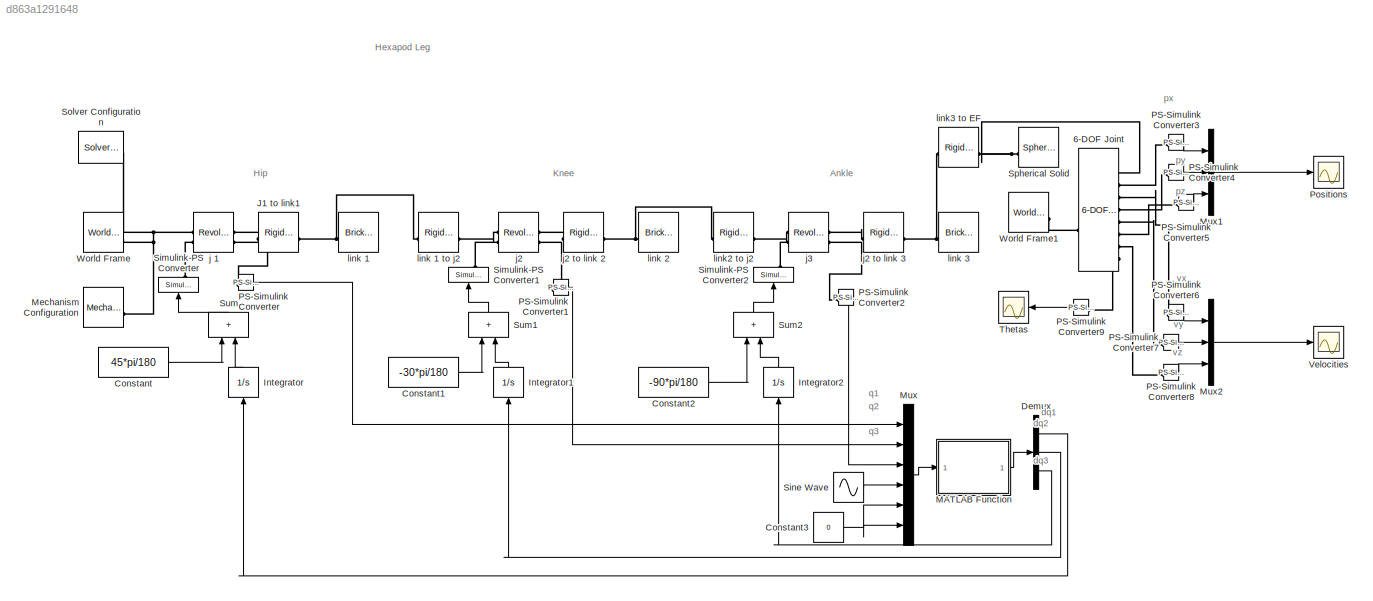
MODEL slx_d863a1291648
KIND model
CONFIG AbsTol = auto
CONFIG EnableMultiTasking = off
CONFIG FixedStep = auto
CONFIG MaxStep = auto
CONFIG MinStep = auto
CONFIG RelTol = 1e-3
CONFIG SampleTimeConstraint = Unconstrained
CONFIG SolverName = VariableStepAuto
CONFIG StartTime = 0.0
CONFIG StopTime = 10
BLOCK [Reference] 6-DOF Joint  REF=sm_lib/Joints/6-DOF Joint
  SourceBlock = sm_lib/Joints/6-DOF Joint
  SourceType = 6-DOF Joint
BLOCK [Constant] Constant
  Value = 45*pi/180
BLOCK [Constant] Constant1
  Value = -30*pi/180
BLOCK [Constant] Constant2
  Value = -90*pi/180
BLOCK [Constant] Constant3
  Value = 0
BLOCK [Demux] Demux
  Outputs = 3
BLOCK [Integrator] Integrator
  NameLocation = right
BLOCK [Integrator] Integrator1
  NameLocation = right
BLOCK [Integrator] Integrator2
  NameLocation = right
BLOCK [Reference] J1 to link1  REF=sm_lib/Frames and
Transforms/Rigid
Transform
  SourceBlock = sm_lib/Frames and\nTransforms/Rigid\nTransform
  SourceType = Rigid\nTransform
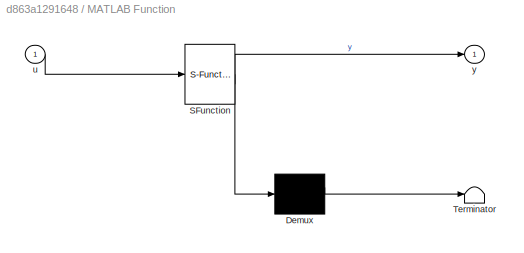
BLOCK [SubSystem] MATLAB Function
  ErrorFcn = Stateflow.Translate.translate
  LibrarySourceBlock = simulink/User-Defined\nFunctions/MATLAB Function
  PermitHierarchicalResolution = ExplicitOnly
  SFBlockType = MATLAB Function
  TreatAsAtomicUnit = on
BLOCK [Demux] MATLAB Function/ Demux 
  Outputs = 1
BLOCK [S-Function] MATLAB Function/ SFunction 
  EnableBusSupport = on
  FunctionName = sf_sfun
  PortCounts = [1 2]
  SFcnIsStateOwnerBlock = off
  SFunctionDeploymentMode = off
  Tag = Stateflow S-Function 2
BLOCK [Terminator] MATLAB Function/ Terminator 
BLOCK [Inport] MATLAB Function/u
BLOCK [Outport] MATLAB Function/y
BLOCK [Reference] Mechanism Configuration  REF=sm_lib/Utilities/Mechanism
Configuration
  SourceBlock = sm_lib/Utilities/Mechanism\nConfiguration
  SourceType = Mechanism\nConfiguration
BLOCK [Mux] Mux
  DisplayOption = bar
  Inputs = 6
BLOCK [Mux] Mux1
  DisplayOption = bar
  Inputs = 3
BLOCK [Mux] Mux2
  DisplayOption = bar
  Inputs = 3
BLOCK [Reference] PS-Simulink Converter  REF=nesl_utility/PS-Simulink
Converter
  SourceBlock = nesl_utility/PS-Simulink\nConverter
  SourceType = PS-Simulink\nConverter
BLOCK [Reference] PS-Simulink Converter1  REF=nesl_utility/PS-Simulink
Converter
  SourceBlock = nesl_utility/PS-Simulink\nConverter
  SourceType = PS-Simulink\nConverter
BLOCK [Reference] PS-Simulink Converter2  REF=nesl_utility/PS-Simulink
Converter
  SourceBlock = nesl_utility/PS-Simulink\nConverter
  SourceType = PS-Simulink\nConverter
BLOCK [Reference] PS-Simulink Converter3  REF=nesl_utility/PS-Simulink
Converter
  SourceBlock = nesl_utility/PS-Simulink\nConverter
  SourceType = PS-Simulink\nConverter
BLOCK [Reference] PS-Simulink Converter4  REF=nesl_utility/PS-Simulink
Converter
  SourceBlock = nesl_utility/PS-Simulink\nConverter
  SourceType = PS-Simulink\nConverter
BLOCK [Reference] PS-Simulink Converter5  REF=nesl_utility/PS-Simulink
Converter
  SourceBlock = nesl_utility/PS-Simulink\nConverter
  SourceType = PS-Simulink\nConverter
BLOCK [Reference] PS-Simulink Converter6  REF=nesl_utility/PS-Simulink
Converter
  SourceBlock = nesl_utility/PS-Simulink\nConverter
  SourceType = PS-Simulink\nConverter
BLOCK [Reference] PS-Simulink Converter7  REF=nesl_utility/PS-Simulink
Converter
  SourceBlock = nesl_utility/PS-Simulink\nConverter
  SourceType = PS-Simulink\nConverter
BLOCK [Reference] PS-Simulink Converter8  REF=nesl_utility/PS-Simulink
Converter
  SourceBlock = nesl_utility/PS-Simulink\nConverter
  SourceType = PS-Simulink\nConverter
BLOCK [Reference] PS-Simulink Converter9  REF=nesl_utility/PS-Simulink
Converter
  SourceBlock = nesl_utility/PS-Simulink\nConverter
  SourceType = PS-Simulink\nConverter
BLOCK [Scope] Positions
  Floating = off
  NumInputPorts = 1
  ScopeSpecificationString = Simulink.scopes.TimeScopeBlockCfg('CurrentConfiguration', extmgr.ConfigurationSet(extmgr.Configuration('Core','General UI',true),extmgr.Configuration('Core','Source UI',true),extmgr.Configuration('Sources','WiredSimulink',true,'DataLoggingVariableName','ScopeData1'),extmgr.Configuration('Visuals','Time Domain',true,'SerializedDisplays',{struct('MinYLimReal','-.17','MaxYLimReal','.17','YLabelReal',...<+1828ch>
BLOCK [Reference] Simulink-PS Converter  REF=nesl_utility/Simulink-PS
Converter
  NameLocation = right
  SourceBlock = nesl_utility/Simulink-PS\nConverter
  SourceType = Simulink-PS\nConverter
BLOCK [Reference] Simulink-PS Converter1  REF=nesl_utility/Simulink-PS
Converter
  NameLocation = right
  SourceBlock = nesl_utility/Simulink-PS\nConverter
  SourceType = Simulink-PS\nConverter
BLOCK [Reference] Simulink-PS Converter2  REF=nesl_utility/Simulink-PS
Converter
  NameLocation = right
  SourceBlock = nesl_utility/Simulink-PS\nConverter
  SourceType = Simulink-PS\nConverter
BLOCK [Sin] Sine Wave
  Amplitude = 120
  Frequency = pi
  SampleTime = 0
BLOCK [Reference] Solver Configuration  REF=nesl_utility/Solver
Configuration
  SourceBlock = nesl_utility/Solver\nConfiguration
  SourceType = Solver\nConfiguration
BLOCK [Reference] Spherical Solid  REF=sm_lib/Body Elements/Spherical Solid
  SourceBlock = sm_lib/Body Elements/Spherical Solid
  SourceType = Spherical Solid
BLOCK [Sum] Sum
  IconShape = rectangular
  Inputs = |++
  NameLocation = right
BLOCK [Sum] Sum1
  IconShape = rectangular
  Inputs = |++
  NameLocation = right
BLOCK [Sum] Sum2
  IconShape = rectangular
  Inputs = |++
  NameLocation = right
BLOCK [Scope] Thetas
  Floating = off
  NumInputPorts = 1
  ScopeSpecificationString = Simulink.scopes.TimeScopeBlockCfg('CurrentConfiguration', extmgr.ConfigurationSet(extmgr.Configuration('Core','General UI',true),extmgr.Configuration('Core','Source UI',true),extmgr.Configuration('Sources','WiredSimulink',true),extmgr.Configuration('Visuals','Time Domain',true,'SerializedDisplays',{struct('MinYLimReal','-0.84355','MaxYLimReal','0.58136','YLabelReal','','MinYLimMag','0.00000','MaxY...<+1452ch>
BLOCK [Scope] Velocities
  Floating = off
  NumInputPorts = 1
  ScopeSpecificationString = Simulink.scopes.TimeScopeBlockCfg('CurrentConfiguration', extmgr.ConfigurationSet(extmgr.Configuration('Core','General UI',true),extmgr.Configuration('Core','Source UI',true),extmgr.Configuration('Sources','WiredSimulink',true,'DataLoggingVariableName','ScopeData2'),extmgr.Configuration('Visuals','Time Domain',true,'SerializedDisplays',{struct('MinYLimReal','-0.14999','MaxYLimReal','0.15013','YLab...<+1872ch>
BLOCK [Reference] World Frame  REF=sm_lib/Frames and
Transforms/World Frame
  SourceBlock = sm_lib/Frames and\nTransforms/World Frame
  SourceType = World Frame
BLOCK [Reference] World Frame1  REF=sm_lib/Frames and
Transforms/World Frame
  SourceBlock = sm_lib/Frames and\nTransforms/World Frame
  SourceType = World Frame
BLOCK [Reference] j 1  REF=sm_lib/Joints/Revolute Joint
  SourceBlock = sm_lib/Joints/Revolute Joint
  SourceType = Revolute Joint
BLOCK [Reference] j2  REF=sm_lib/Joints/Revolute Joint
  SourceBlock = sm_lib/Joints/Revolute Joint
  SourceType = Revolute Joint
BLOCK [Reference] j2 to link 2  REF=sm_lib/Frames and
Transforms/Rigid
Transform
  SourceBlock = sm_lib/Frames and\nTransforms/Rigid\nTransform
  SourceType = Rigid\nTransform
BLOCK [Reference] j2 to link 3  REF=sm_lib/Frames and
Transforms/Rigid
Transform
  SourceBlock = sm_lib/Frames and\nTransforms/Rigid\nTransform
  SourceType = Rigid\nTransform
BLOCK [Reference] j3  REF=sm_lib/Joints/Revolute Joint
  SourceBlock = sm_lib/Joints/Revolute Joint
  SourceType = Revolute Joint
BLOCK [Reference] link 1  REF=sm_lib/Body Elements/Brick Solid
  SourceBlock = sm_lib/Body Elements/Brick Solid
  SourceType = Brick Solid
BLOCK [Reference] link 1 to j2  REF=sm_lib/Frames and
Transforms/Rigid
Transform
  SourceBlock = sm_lib/Frames and\nTransforms/Rigid\nTransform
  SourceType = Rigid\nTransform
BLOCK [Reference] link 2  REF=sm_lib/Body Elements/Brick Solid
  SourceBlock = sm_lib/Body Elements/Brick Solid
  SourceType = Brick Solid
BLOCK [Reference] link 3  REF=sm_lib/Body Elements/Brick Solid
  SourceBlock = sm_lib/Body Elements/Brick Solid
  SourceType = Brick Solid
BLOCK [Reference] link2 to j2  REF=sm_lib/Frames and
Transforms/Rigid
Transform
  SourceBlock = sm_lib/Frames and\nTransforms/Rigid\nTransform
  SourceType = Rigid\nTransform
BLOCK [Reference] link3 to EF  REF=sm_lib/Frames and
Transforms/Rigid
Transform
  SourceBlock = sm_lib/Frames and\nTransforms/Rigid\nTransform
  SourceType = Rigid\nTransform
ANNOTATION (root): Ankle
ANNOTATION (root): Knee
ANNOTATION (root): Hip
ANNOTATION (root): Hexapod Leg
ANNOTATION (root): dq1
ANNOTATION (root): dq2
ANNOTATION (root): dq3
ANNOTATION (root): px
ANNOTATION (root): py
ANNOTATION (root): pz
ANNOTATION (root): q1
ANNOTATION (root): q2
ANNOTATION (root): q3
ANNOTATION (root): vx
ANNOTATION (root): vy
ANNOTATION (root): vz
LINE Constant1:1 -> Sum1:1
LINE Constant2:1 -> Sum2:1
NET Constant3:1 -> Mux:5, Mux:6
LINE Constant:1 -> Sum:1
LINE Demux:1 -> Integrator:1
LINE Demux:2 -> Integrator1:1
LINE Demux:3 -> Integrator2:1
LINE Integrator1:1 -> Sum1:2
LINE Integrator2:1 -> Sum2:2
LINE Integrator:1 -> Sum:2
LINE MATLAB Function:1 -> Demux:1
LINE Mux1:1 -> Positions:1
LINE Mux2:1 -> Velocities:1
LINE Mux:1 -> MATLAB Function:1
LINE PS-Simulink Converter1:1 -> Mux:2
LINE PS-Simulink Converter2:1 -> Mux:3
LINE PS-Simulink Converter3:1 -> Mux1:1
LINE PS-Simulink Converter4:1 -> Mux1:2
LINE PS-Simulink Converter5:1 -> Mux1:3
LINE PS-Simulink Converter6:1 -> Mux2:1
LINE PS-Simulink Converter7:1 -> Mux2:2
LINE PS-Simulink Converter8:1 -> Mux2:3
LINE PS-Simulink Converter9:1 -> Thetas:1
LINE PS-Simulink Converter:1 -> Mux:1
LINE Sine Wave:1 -> Mux:4
LINE Sum1:1 -> Simulink-PS Converter1:1
LINE Sum2:1 -> Simulink-PS Converter2:1
LINE Sum:1 -> Simulink-PS Converter:1
PLINE 6-DOF Joint:LConn1 -- World Frame1:RConn1
PNET net1: 6-DOF Joint:RConn1 -- Spherical Solid:RConn1 -- link3 to EF:RConn1
PLINE 6-DOF Joint:RConn2 -- PS-Simulink Converter3:LConn1
PLINE 6-DOF Joint:RConn3 -- PS-Simulink Converter6:LConn1
PLINE 6-DOF Joint:RConn4 -- PS-Simulink Converter4:LConn1
PLINE 6-DOF Joint:RConn5 -- PS-Simulink Converter7:LConn1
PLINE 6-DOF Joint:RConn6 -- PS-Simulink Converter5:LConn1
PLINE 6-DOF Joint:RConn7 -- PS-Simulink Converter8:LConn1
PLINE 6-DOF Joint:RConn8 -- PS-Simulink Converter9:LConn1
PLINE J1 to link1:LConn1 -- j 1:RConn1
PNET net2: J1 to link1:RConn1 -- link 1 to j2:LConn1 -- link 1:RConn1
PNET net3: Mechanism Configuration:RConn1 -- Solver Configuration:RConn1 -- World Frame:RConn1 -- j 1:LConn1
PLINE PS-Simulink Converter1:LConn1 -- j2:RConn2
PLINE PS-Simulink Converter2:LConn1 -- j3:RConn2
PLINE PS-Simulink Converter:LConn1 -- j 1:RConn2
PLINE Simulink-PS Converter1:RConn1 -- j2:LConn2
PLINE Simulink-PS Converter2:RConn1 -- j3:LConn2
PLINE Simulink-PS Converter:RConn1 -- j 1:LConn2
PLINE j2 to link 2:LConn1 -- j2:RConn1
PNET net4: j2 to link 2:RConn1 -- link 2:RConn1 -- link2 to j2:LConn1
PLINE j2 to link 3:LConn1 -- j3:RConn1
PNET net5: j2 to link 3:RConn1 -- link 3:RConn1 -- link3 to EF:LConn1
PLINE j2:LConn1 -- link 1 to j2:RConn1
PLINE j3:LConn1 -- link2 to j2:RConn1
note: NET lines group one-source signal fan-out (src -> all destinations, sorted); 1:1 wires keep LINE; PNET lines group multi-terminal physical nets as a canonical sorted terminal list (undirected conserving connections); 2-terminal nets keep the pairwise PLINE form
CHART MATLAB Function states=1 transitions=1
  STATE_LABEL 'eML_blk_kernel()'
  STATE_LABEL 'SCRIPT:\nfunction y = jacobi_inv(u)\na1 = 50; a2= 100;  a3= 100; \n\nq1= u(1) ; q2= u(2) ; q3 = u(3); \nc23 =cos(q2+q3); s23=sin(q2+q3);\ndx= u(4) ; dy= u(5) ; dz = u(6); \n\n\njacobian__matrix=  [      -sin(q1)*(a1 + a3*c23 + a2*cos(q2)),                 -cos(q1)*(a3*s23 + a2*sin(q2)),          -a3*s23*cos(q1);\n                 cos(q1)*(a1 + a3*c23 + a2*cos(q2)),                 -sin(q1)*(a3*s23 + a2*sin(...<+592ch>'
CHART  states=0 transitions=0
